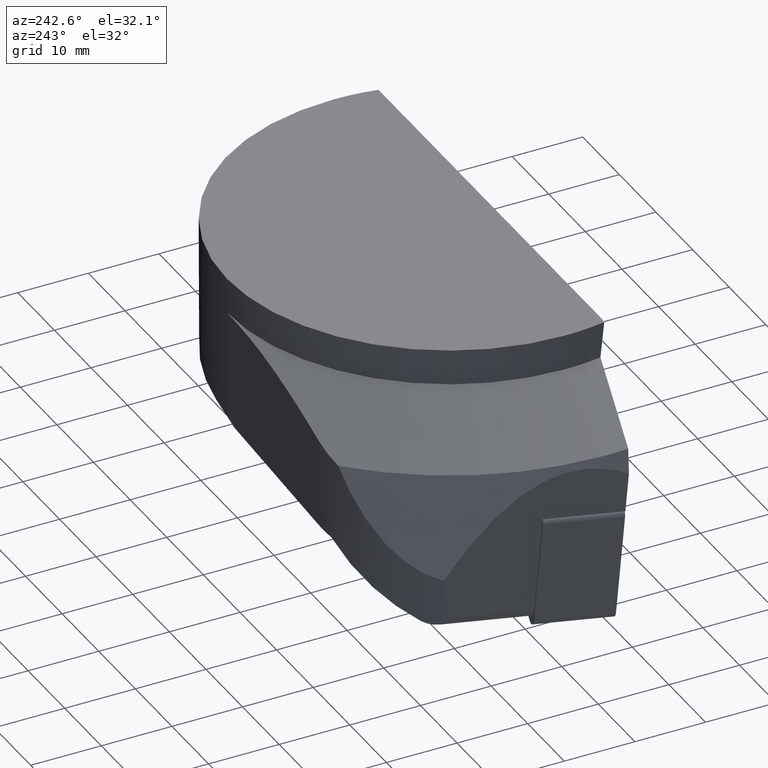
[diagram: clean part render]
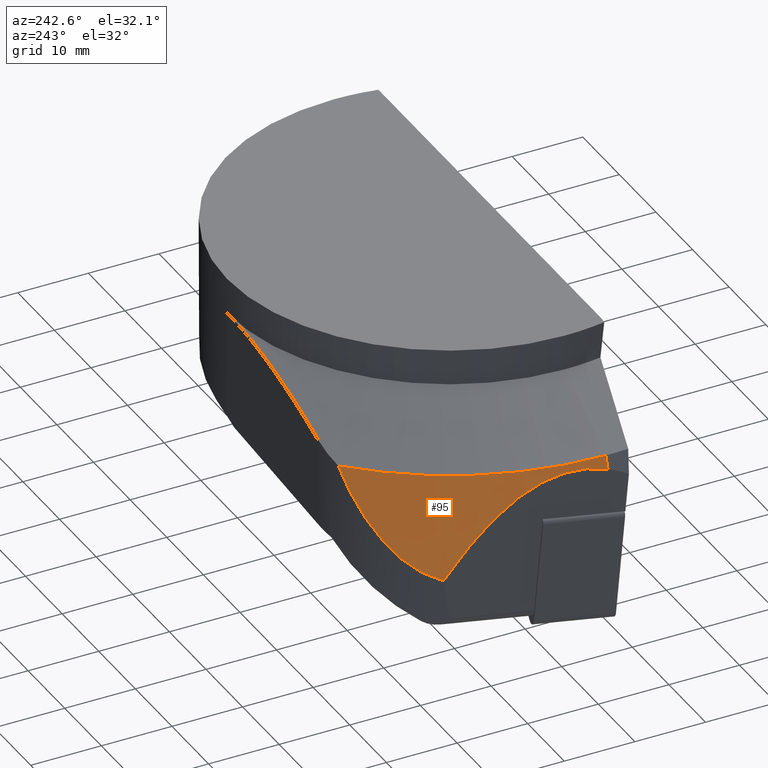
[diagram: same view with one face highlighted and labeled with its STEP entity id]
A machine part, auxiliary view. The second image highlights one B-rep face of the part: STEP entity #95.
In plain terms, the highlighted conical surface has half-angle 20 deg.
Its self-contained STEP definition (entity closure, byte-faithful):
#95=ADVANCED_FACE('',(#148),#149,.T.);
#148=FACE_OUTER_BOUND('',#212,.T.);
#149=CONICAL_SURFACE('',#213,42.7806144481552,0.349065849601132);
#212=EDGE_LOOP('',(#401,#402,#403,#404));
#213=AXIS2_PLACEMENT_3D('',#405,#406,#407);
#401=ORIENTED_EDGE('',*,*,#566,.F.);
#402=ORIENTED_EDGE('',*,*,#567,.F.);
#403=ORIENTED_EDGE('',*,*,#509,.F.);
#404=ORIENTED_EDGE('',*,*,#525,.F.);
#405=CARTESIAN_POINT('',(0.0,-2.99760216648792E-014,-11.561225304359));
#406=DIRECTION('',(0.0,-0.0,-1.0));
#407=DIRECTION('',(0.394471910307187,0.918907999735881,0.0));
#509=EDGE_CURVE('',#598,#600,#601,.T.);
#525=EDGE_CURVE('',#628,#598,#630,.T.);
#566=EDGE_CURVE('',#695,#628,#696,.T.);
#567=EDGE_CURVE('',#600,#695,#697,.T.);
#598=VERTEX_POINT('',#756);
#600=VERTEX_POINT('',#758);
#601=B_SPLINE_CURVE_WITH_KNOTS('',3,(#759,#760,#761,#762,#763,#764,#765,#766,#767,#768,#769,#770,#771,#772,#773,#774),.UNSPECIFIED.,.F.,.F.,(4,2,2,2,2,2,2,4),(26.2664823185898,27.6243507450446,29.7536378607249,31.8829249764053,35.5950819891459,39.3072390018865,43.019396014627,45.5276441190841),.UNSPECIFIED.);
#628=VERTEX_POINT('',#814);
#630=(B_SPLINE_CURVE(2,(#817,#818,#819),.UNSPECIFIED.,.F.,.F.)B_SPLINE_CURVE_WITH_KNOTS((3,3),(16.1804372679566,43.6030907003918),.UNSPECIFIED.)RATIONAL_B_SPLINE_CURVE((1.0564771855103,1.07640387372252,1.00165153471097))BOUNDED_CURVE()REPRESENTATION_ITEM('')GEOMETRIC_REPRESENTATION_ITEM()CURVE());
#695=VERTEX_POINT('',#932);
#696=LINE('',#933,#934);
#697=CIRCLE('',#935,42.7583302491977);
#756=CARTESIAN_POINT('',(-41.7328957584472,22.4549166836429,-24.2267348735154));
#758=CARTESIAN_POINT('',(-29.4512462150672,30.9983693454825,-11.5));
#759=CARTESIAN_POINT('',(-41.7328957584472,22.4549166836429,-24.2267348735154));
#760=CARTESIAN_POINT('',(-41.4774305124609,22.8451226025412,-24.1166245283476));
#761=CARTESIAN_POINT('',(-41.209476547354,23.2244122809021,-23.9809993746861));
#762=CARTESIAN_POINT('',(-40.4998929520124,24.1596671597686,-23.5748307826488));
#763=CARTESIAN_POINT('',(-40.0452306675594,24.6942809375487,-23.2706201639303));
#764=CARTESIAN_POINT('',(-39.1294086899895,25.6706677807837,-22.5874070547748));
#765=CARTESIAN_POINT('',(-38.6683116967142,26.1126169081332,-22.2085721524252));
#766=CARTESIAN_POINT('',(-37.4484016005857,27.1877367133264,-21.1374408521392));
#767=CARTESIAN_POINT('',(-36.6399120620046,27.7929350199541,-20.3491418322813));
#768=CARTESIAN_POINT('',(-35.0028898544862,28.8461661155331,-18.6155059005941));
#769=CARTESIAN_POINT('',(-34.1743983612639,29.2943106041819,-17.6701979705059));
#770=CARTESIAN_POINT('',(-32.5420781104469,30.0451915163858,-15.690207472594));
#771=CARTESIAN_POINT('',(-31.7380091014324,30.3481599014561,-14.6552419392213));
#772=CARTESIAN_POINT('',(-30.4446790255744,30.7523766728924,-12.907753267095));
#773=CARTESIAN_POINT('',(-29.937837116258,30.8872864200934,-12.1995750916439));
#774=CARTESIAN_POINT('',(-29.4512462150672,30.9983693454825,-11.5));
#814=CARTESIAN_POINT('',(-43.373828492306,3.998611E-015,-13.1910675246639));
#817=CARTESIAN_POINT('',(-43.373828492306,3.998611E-015,-13.1910675246639));
#818=CARTESIAN_POINT('',(-42.0153361086666,10.5858966040952,-9.45864037616609));
#819=CARTESIAN_POINT('',(-41.7328957584472,22.4549166836429,-24.2267348735154));
#932=CARTESIAN_POINT('',(-42.7583302491977,7.947789E-015,-11.5));
#933=CARTESIAN_POINT('',(-42.7583302491977,7.947789E-015,-11.5));
#934=VECTOR('',#1076,1.79959647150196);
#935=AXIS2_PLACEMENT_3D('',#1077,#1078,#1079);
#1076=DIRECTION('',(-0.342020143323912,-2.19448E-015,-0.939692620786548));
#1077=CARTESIAN_POINT('',(0.0,4.494703E-015,-11.5));
#1078=DIRECTION('',(0.0,0.0,1.0));
#1079=DIRECTION('',(-1.0,0.0,0.0));